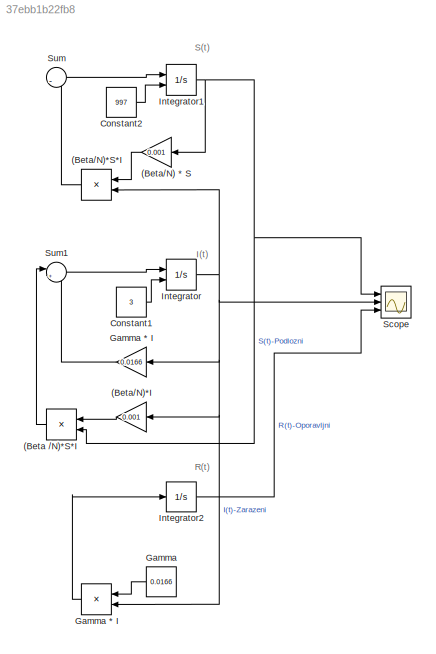
MODEL slx_37ebb1b22fb8
KIND model
CONFIG AbsTol = auto
CONFIG EnableMultiTasking = off
CONFIG FixedStep = auto
CONFIG MaxStep = auto
CONFIG MinStep = auto
CONFIG RelTol = 1e-3
CONFIG SampleTimeConstraint = Unconstrained
CONFIG Solver = VariableStepAuto
CONFIG SolverName = VariableStepAuto
CONFIG StartTime = 0.0
CONFIG StopTime = 150
BLOCK [Product]  Gamma * I
  InputSameDT = off
  OutDataTypeStr = Inherit: Inherit via internal rule
  Ports = [2, 1]
  RndMeth = Floor
  SaturateOnIntegerOverflow = off
BLOCK [Product] (Beta //N)*S*I
  InputSameDT = off
  OutDataTypeStr = Inherit: Inherit via internal rule
  Ports = [2, 1]
  RndMeth = Floor
  SaturateOnIntegerOverflow = off
BLOCK [Gain] (Beta//N) * S
  Gain = 0.001
  OutDataTypeStr = Inherit: Inherit via internal rule
  ParamDataTypeStr = Inherit: Inherit via internal rule
  SaturateOnIntegerOverflow = off
BLOCK [Gain] (Beta//N)*I
  Gain = 0.001
  OutDataTypeStr = Inherit: Inherit via internal rule
  ParamDataTypeStr = Inherit: Inherit via internal rule
  SaturateOnIntegerOverflow = off
BLOCK [Product] (Beta//N)*S*I
  InputSameDT = off
  OutDataTypeStr = Inherit: Inherit via internal rule
  Ports = [2, 1]
  RndMeth = Floor
  SaturateOnIntegerOverflow = off
BLOCK [Constant] Constant1
  Value = 3
BLOCK [Constant] Constant2
  Value = 997
BLOCK [Constant] Gamma
  Value = 0.0166
BLOCK [Gain] Gamma * I 
  Gain = 0.0166
  OutDataTypeStr = Inherit: Inherit via internal rule
  ParamDataTypeStr = Inherit: Inherit via internal rule
  SaturateOnIntegerOverflow = off
BLOCK [Integrator] Integrator
  InitialConditionSource = external
  Ports = [2, 1]
BLOCK [Integrator] Integrator1
  InitialCondition = 1000
  InitialConditionSource = external
  Ports = [2, 1]
BLOCK [Integrator] Integrator2
  Ports = [1, 1]
BLOCK [Scope] Scope
  Floating = off
  NumInputPorts = 3
  Ports = [3]
  ScopeSpecificationString = Simulink.scopes.TimeScopeBlockCfg('CurrentConfiguration', extmgr.ConfigurationSet(extmgr.Configuration('Core','General UI',true,'FigureColor',[1 1 1]),extmgr.Configuration('Core','Source UI',true),extmgr.Configuration('Sources','WiredSimulink',true,'DataLoggingVariableName','ScopeData2'),extmgr.Configuration('Visuals','Time Domain',true,'SerializedDisplays',{struct('MinYLimReal','-124.625','MaxYLi...<+1782ch>
BLOCK [Sum] Sum
  IconShape = round
  InputSameDT = off
  Inputs = |-
  OutDataTypeStr = Inherit: Inherit via internal rule
  Ports = [1, 1]
  SaturateOnIntegerOverflow = off
BLOCK [Sum] Sum1
  IconShape = round
  InputSameDT = off
  Inputs = |+-
  OutDataTypeStr = Inherit: Inherit via internal rule
  Ports = [2, 1]
  SaturateOnIntegerOverflow = off
ANNOTATION (root): I(t)
ANNOTATION (root): R(t)
ANNOTATION (root): S(t)
LINE  Gamma * I:1 -> Integrator2:1
LINE (Beta //N)*S*I:1 -> Sum1:1
LINE (Beta//N) * S:1 -> (Beta//N)*S*I:1
LINE (Beta//N)*I:1 -> (Beta //N)*S*I:1
LINE (Beta//N)*S*I:1 -> Sum:1
LINE Constant1:1 -> Integrator:2
LINE Constant2:1 -> Integrator1:2
LINE Gamma * I :1 -> Sum1:2
LINE Gamma:1 ->  Gamma * I:1
NET Integrator1:1 -> (Beta //N)*S*I:2, (Beta//N) * S:1, Scope:1
LINE Integrator2:1 -> Scope:3
NET Integrator:1 ->  Gamma * I:2, (Beta//N)*I:1, (Beta//N)*S*I:2, Gamma * I :1, Scope:2
LINE Sum1:1 -> Integrator:1
LINE Sum:1 -> Integrator1:1
note: NET lines group one-source signal fan-out (src -> all destinations, sorted); 1:1 wires keep LINE
